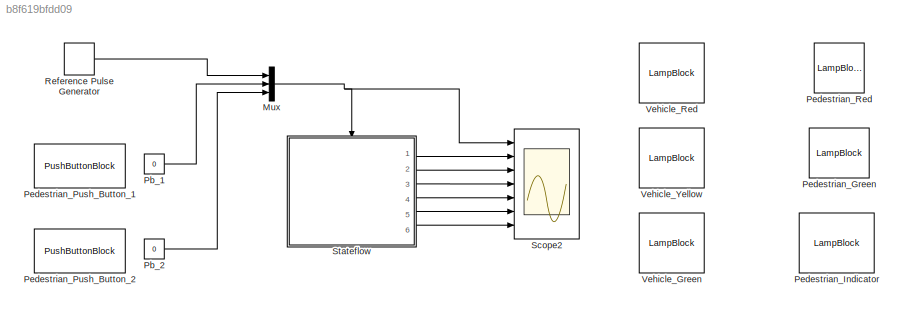
MODEL slx_b8f619bfdd09
KIND model
CONFIG AbsTol = auto
CONFIG EnableMultiTasking = off
CONFIG FixedStep = 0.001
CONFIG MaxStep = auto
CONFIG MinStep = auto
CONFIG RelTol = 1e-3
CONFIG SampleTimeConstraint = Unconstrained
CONFIG Solver = FixedStepDiscrete
CONFIG SolverName = FixedStepDiscrete
CONFIG StartTime = 0.0
CONFIG StopTime = inf
BLOCK [Mux] Mux
  DisplayOption = bar
  Inputs = 3
  Ports = [3, 1]
BLOCK [Constant] Pb_1
  Value = 0
BLOCK [Constant] Pb_2
  Value = 0
BLOCK [LampBlock] Pedestrian_Green
BLOCK [LampBlock] Pedestrian_Indicator
BLOCK [PushButtonBlock] Pedestrian_Push_Button_1
  LabelPosition = Top
BLOCK [PushButtonBlock] Pedestrian_Push_Button_2
  LabelPosition = Top
BLOCK [LampBlock] Pedestrian_Red
BLOCK [DiscretePulseGenerator] Reference Pulse Generator
  Period = 10
  Ports = [0, 1]
  PulseType = Time based
  PulseWidth = 50
  SampleTime = 0.1
BLOCK [Scope] Scope2
  Floating = off
  NumInputPorts = 7
  Ports = [7]
  ScopeSpecificationString = Simulink.scopes.TimeScopeBlockCfg('CurrentConfiguration', extmgr.ConfigurationSet(extmgr.Configuration('Core','General UI',true),extmgr.Configuration('Core','Source UI',true),extmgr.Configuration('Sources','WiredSimulink',true,'DataLoggingVariableName','ScopeData2'),extmgr.Configuration('Visuals','Time Domain',true,'SerializedDisplays',{struct('MinYLimReal','-0.125','MaxYLimReal','1.125','YLabelRe...<+6180ch>
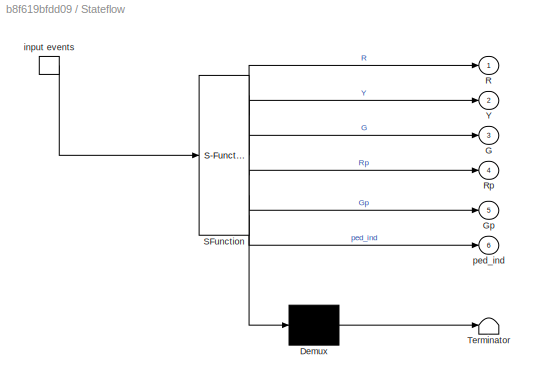
BLOCK [SubSystem] Stateflow
  ErrorFcn = Stateflow.Translate.translate
  PermitHierarchicalResolution = ExplicitOnly
  Ports = [0, 6, 0, 1]
  RequestExecContextInheritance = off
  SFBlockType = Chart
  TreatAsAtomicUnit = on
BLOCK [Demux] Stateflow/ Demux 
  Outputs = 1
  Ports = [1, 1]
BLOCK [S-Function] Stateflow/ SFunction 
  EnableBusSupport = on
  FunctionName = sf_sfun
  PortCounts = [1 7]
  Ports = [1, 7]
  SFcnIsStateOwnerBlock = off
  SFunctionDeploymentMode = off
  Tag = Stateflow S-Function 1
BLOCK [Terminator] Stateflow/ Terminator 
BLOCK [Outport] Stateflow/G
  Port = 3
BLOCK [Outport] Stateflow/Gp
  Port = 5
BLOCK [Outport] Stateflow/R
BLOCK [Outport] Stateflow/Rp
  Port = 4
BLOCK [Outport] Stateflow/Y
  Port = 2
BLOCK [TriggerPort] Stateflow/input events
  Ports = [0, 1]
  ShowOutputPort = on
  StatesWhenEnabling = held
  TriggerType = either
  VariantControl = (inherit)
BLOCK [Outport] Stateflow/ped_ind
  Port = 6
BLOCK [LampBlock] Vehicle_Green
BLOCK [LampBlock] Vehicle_Red
BLOCK [LampBlock] Vehicle_Yellow
NET Mux:1 -> Scope2:1, Stateflow:trigger
LINE Pb_1:1 -> Mux:2
LINE Pb_2:1 -> Mux:3
LINE Reference Pulse Generator:1 -> Mux:1
LINE Stateflow:1 -> Scope2:2
LINE Stateflow:2 -> Scope2:3
LINE Stateflow:3 -> Scope2:4
LINE Stateflow:4 -> Scope2:5
LINE Stateflow:5 -> Scope2:6
LINE Stateflow:6 -> Scope2:7
note: NET lines group one-source signal fan-out (src -> all destinations, sorted); 1:1 wires keep LINE
CHART Stateflow states=10 transitions=15
  STATE_LABEL 'Default_state\nen: R = 0;\n Y = 0;\n G = 1;\n Rp = 1;\n Gp = 0;\n ped_ind = 0;'
  STATE_LABEL 'Activate_Ped_cross'
  STATE_LABEL 'Road'
  STATE_LABEL 'Go\nen: R = 0;\n Y = 0;\n G = 1;\n Rp = 1;\n Gp = 0;\n N = timer_G;\n ped_ind = 1;'
  STATE_LABEL 'Caution_Stop\nen: R = 0;\n Y = 1;\n G = 0;\n Rp = 1;\n Gp = 0;\n N = timer_Y;\n ped_ind = 1;'
  STATE_LABEL 'Stop\nen: R = 1;\n Y = 0;\n G = 0;\n Rp = 0;\n Gp = 1;\n N = timer_R;\n ped_ind = 0;'
  STATE_LABEL 'Caution_Go\nen: R = 1;\n Y = 1;\n G = 0;\n Rp = 1;\n Gp = 0;\n N = timer_RY;\n ped_ind = 0;'
  STATE_LABEL '[nx_state == 1]'
  STATE_LABEL '[nx_state == 1]'
  STATE_LABEL '[nx_state == 1]'
  STATE_LABEL 'Clock_signal'
  STATE_LABEL 'clk_count_check(cnt)'
  STATE_LABEL '% clk_count'
  STATE_LABEL '[cnt == N]'
  STATE_LABEL '{nx_state = 0 }'
  STATE_LABEL '{nx_state = 1, count = 0;}'
  STATE_LABEL 'Clock\nen: clk_count_check(count)'
  STATE_LABEL '[clk]{count = count + 1}'
  STATE_LABEL 'Road'
  STATE_LABEL 'Go\nen: R = 0;\n Y = 0;\n G = 1;\n Rp = 1;\n Gp = 0;\n N = timer_G;\n ped_ind = 1;'
  STATE_LABEL 'Caution_Stop\nen: R = 0;\n Y = 1;\n G = 0;\n Rp = 1;\n Gp = 0;\n N = timer_Y;\n ped_ind = 1;'
  STATE_LABEL 'Stop\nen: R = 1;\n Y = 0;\n G = 0;\n Rp = 0;\n Gp = 1;\n N = timer_R;\n ped_ind = 0;'
  STATE_LABEL 'Caution_Go\nen: R = 1;\n Y = 1;\n G = 0;\n Rp = 1;\n Gp = 0;\n N = timer_RY;\n ped_ind = 0;'
  STATE_LABEL '[nx_state == 1]'
  STATE_LABEL '[nx_state == 1]'
  STATE_LABEL '[nx_state == 1]'
  STATE_LABEL 'Go\nen: R = 0;\n Y = 0;\n G = 1;\n Rp = 1;\n Gp = 0;\n N = timer_G;\n ped_ind = 1;'
  STATE_LABEL 'Caution_Stop\nen: R = 0;\n Y = 1;\n G = 0;\n Rp = 1;\n Gp = 0;\n N = timer_Y;\n ped_ind = 1;'
  STATE_LABEL 'Stop\nen: R = 1;\n Y = 0;\n G = 0;\n Rp = 0;\n Gp = 1;\n N = timer_R;\n ped_ind = 0;'
  STATE_LABEL 'Caution_Go\nen: R = 1;\n Y = 1;\n G = 0;\n Rp = 1;\n Gp = 0;\n N = timer_RY;\n ped_ind = 0;'
  STATE_LABEL 'Clock_signal'
  STATE_LABEL 'clk_count_check(cnt)'
  STATE_LABEL '% clk_count'
  STATE_LABEL '[cnt == N]'
  STATE_LABEL '{nx_state = 0 }'
  STATE_LABEL '{nx_state = 1, count = 0;}'
  STATE_LABEL 'Clock\nen: clk_count_check(count)'
  STATE_LABEL '[clk]{count = count + 1}'
  STATE_LABEL 'clk_count_check(cnt)'
  STATE_LABEL '% clk_count'
CHART  states=0 transitions=0
